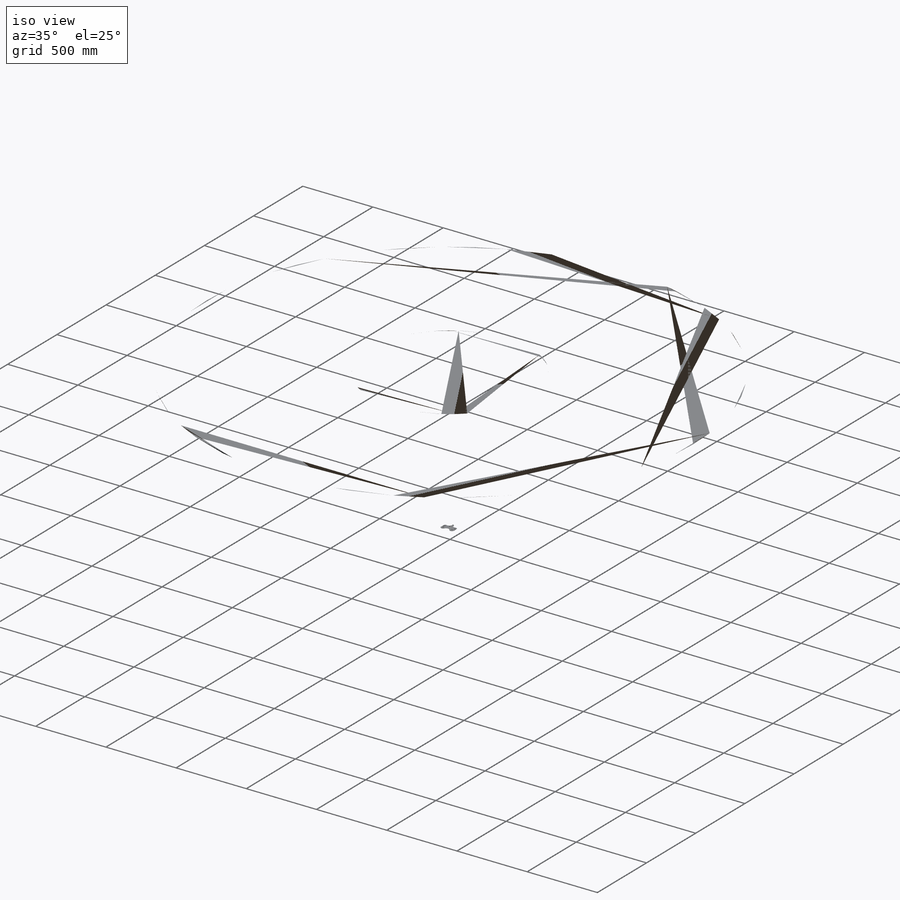
[diagram: iso view]
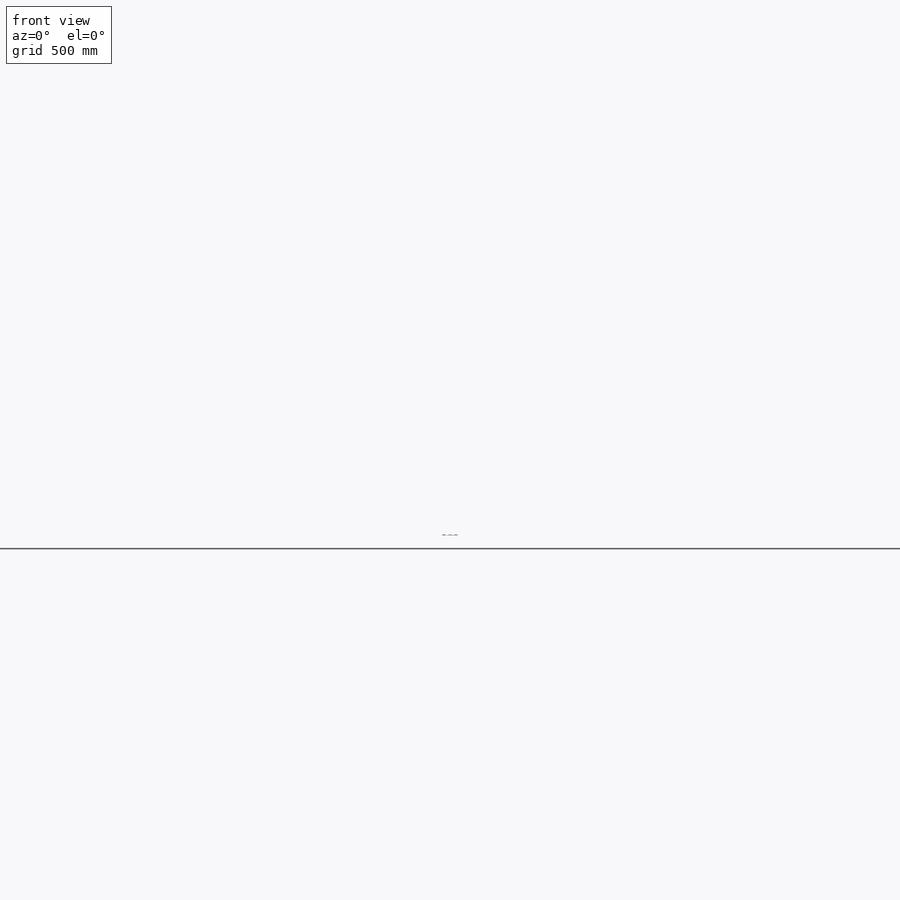
[diagram: front view]
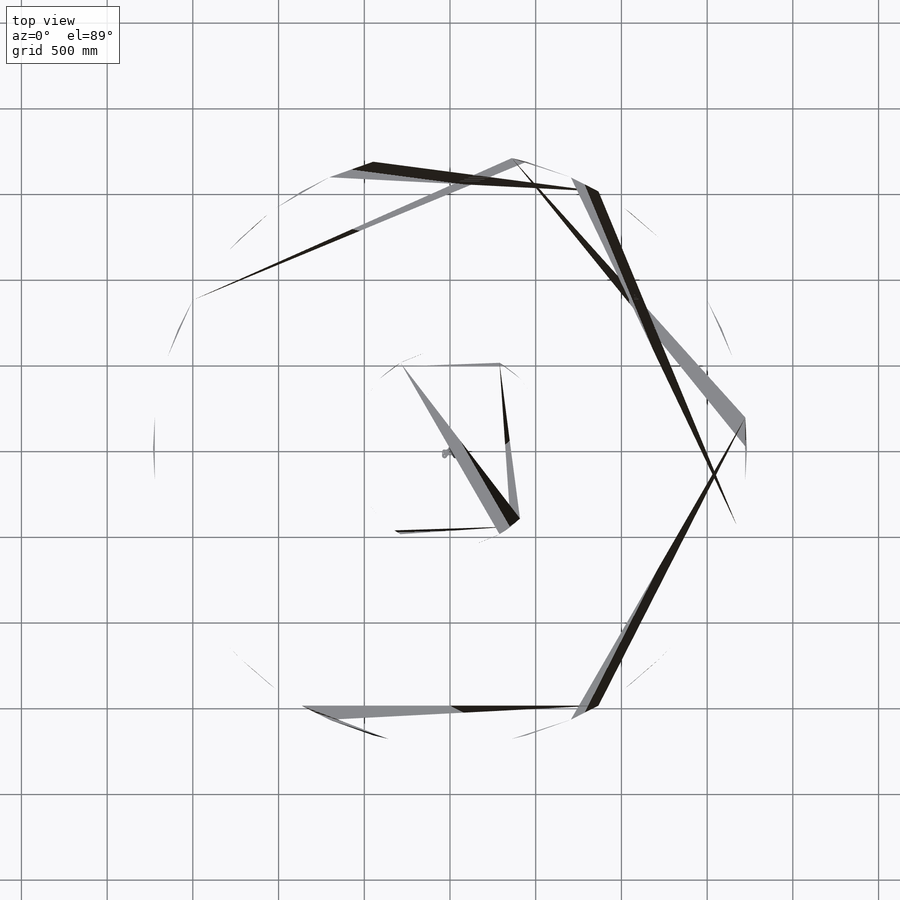
[diagram: top view]
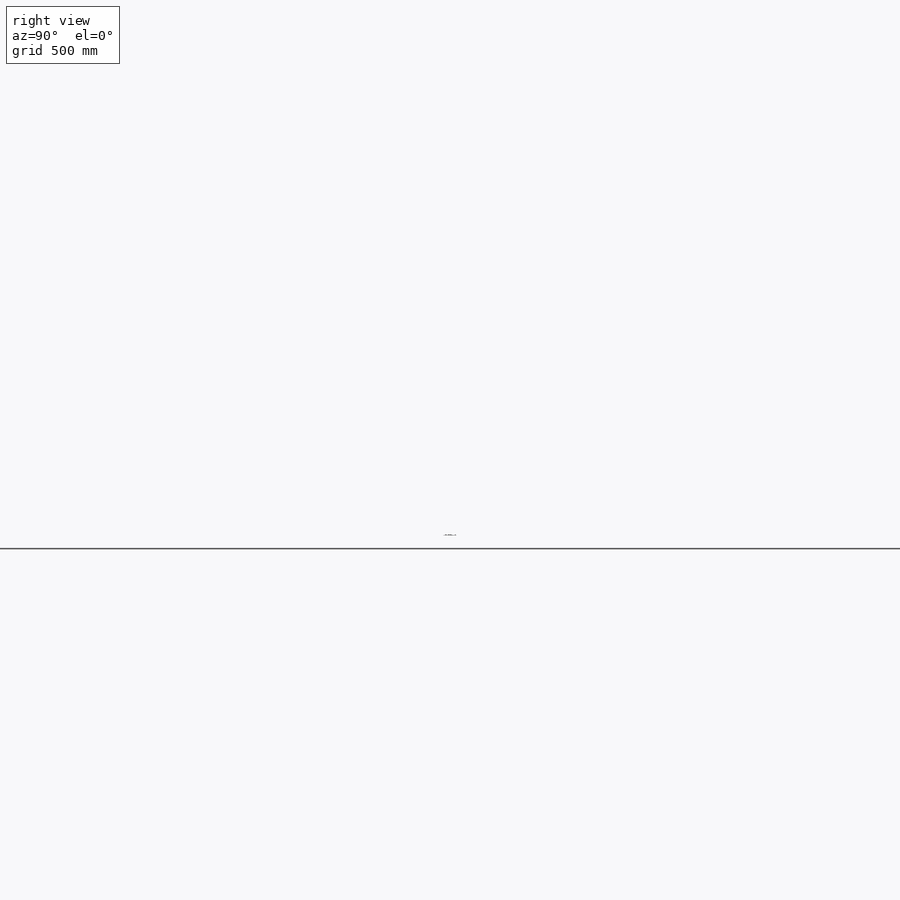
[diagram: right view]
SOLIDWORKS PART (.sldprt)
format: sldprt  version: not decoded by parser v0  size: 409,600 bytes
history: native  units: mm
features: sketch x5, extrude x3, cut_extrude x2, material x1, chamfer x1 + 1 further entry (+17 scaffold rows collapsed; 3 parser-record rows omitted)
feature tree (33):
  scaffold x17  (default folders/planes/origin — collapsed)
  material  "ABS"
  "a1_o"
  parser-record x3  (decoder bookkeeping rows leaked as tree rows — omitted from the tree; the rows remain in map.json)
  sketch  "Sketch1"  dims[D1=0.0mm]
  extrude  "Pad Base"  Depth=1.5mm
  sketch  "Sketch2"  dims[D1=8.0mm]
  extrude  "Insert Body"  Depth=3mm
  sketch  "Sketch5"  dims[D1=6.0mm D2=10.0mm D3=10.0mm D4=17.5mm]
  extrude  "Urethane Anchors"  [1 undecoded]
  sketch  "Sketch6"  dims[D2=2.0mm D1=3.0mm]
  cut_extrude  "Urethane Ports"  [1 undecoded]
  chamfer  "Chamfer2"  Distance=5mm Angle=30deg
  sketch  "Sketch8"  dims[D1=3.9mm]
  cut_extrude  "Inserts Clearance"  [1 undecoded]
decode coverage: 8 of 11 modeling features carry decoded parameters; 1 rows unclassified (native names shown)
note: 3 parameter values undecoded
summary: no parameter record found for 3 features
note: suppression state not decoded; provenance and decode notes live in map.json
